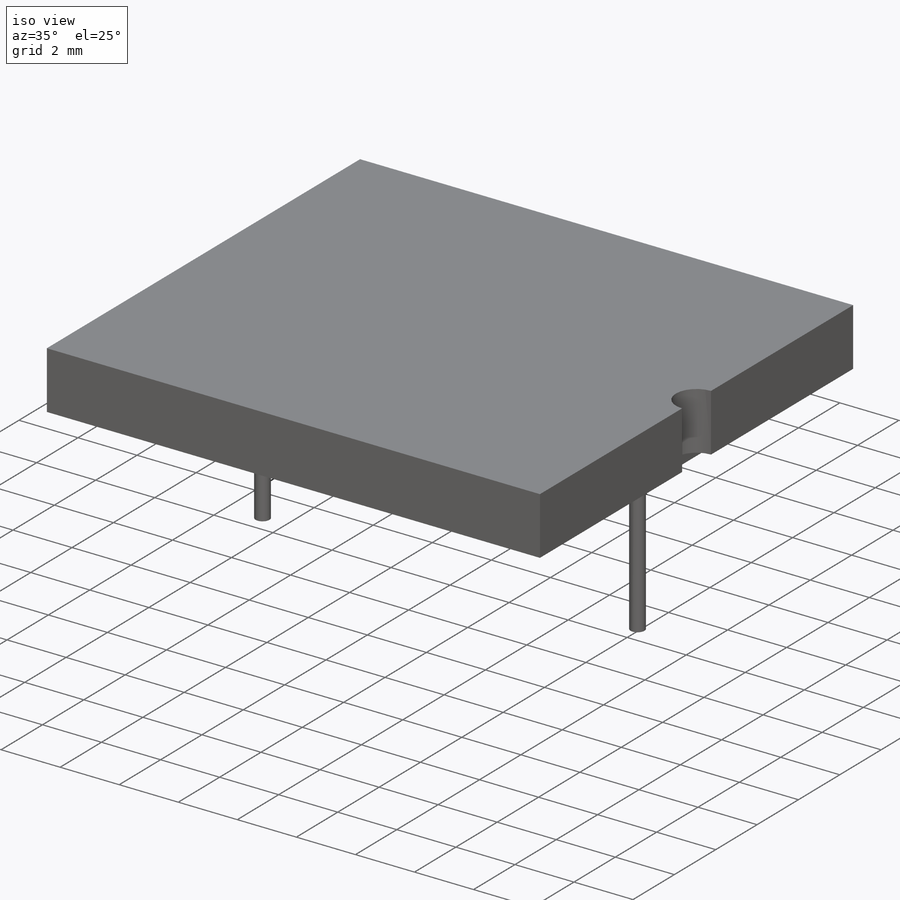
[diagram: iso view]
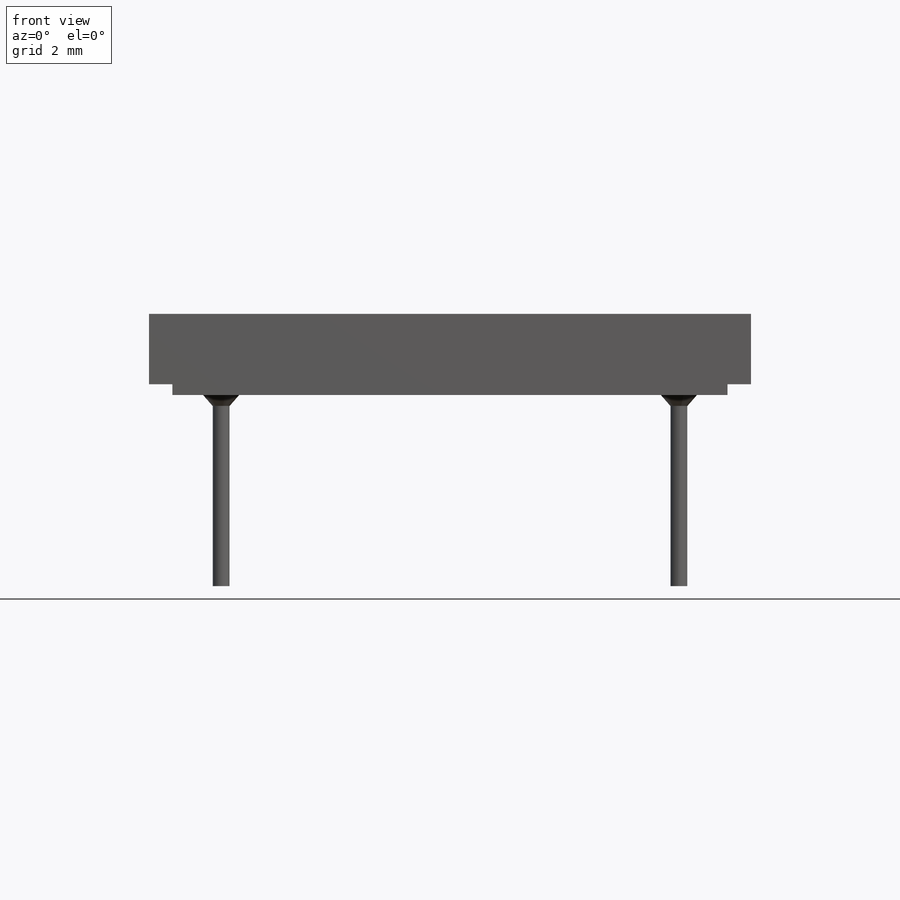
[diagram: front view]
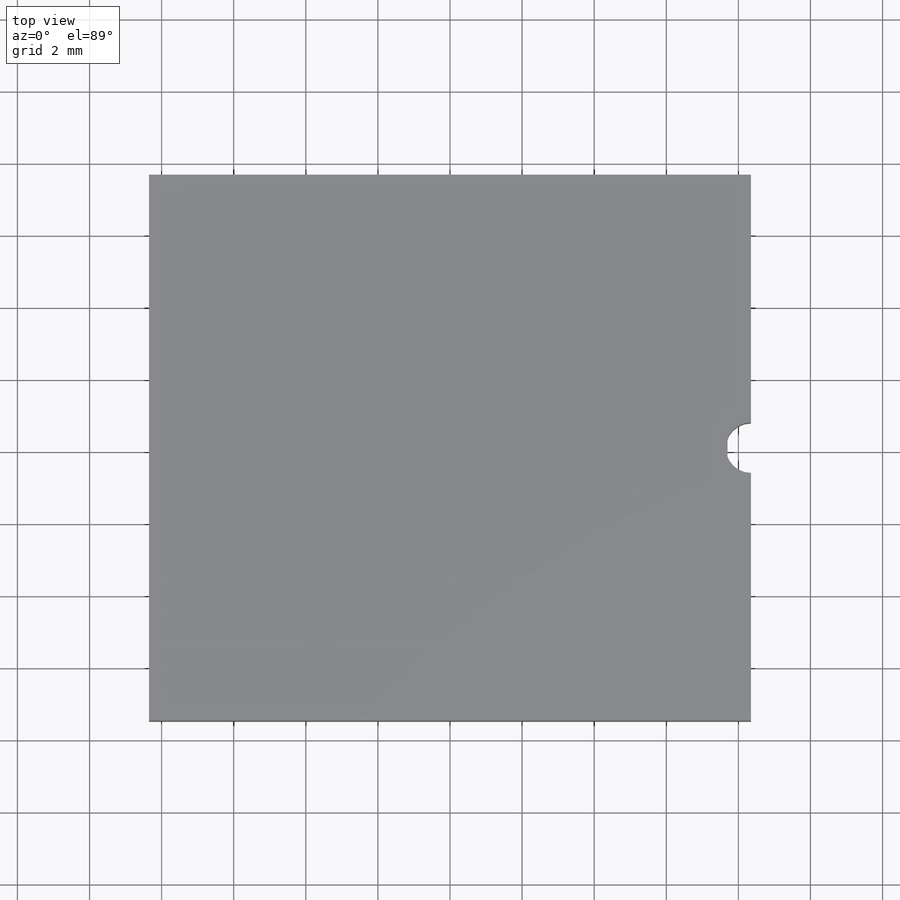
[diagram: top view]
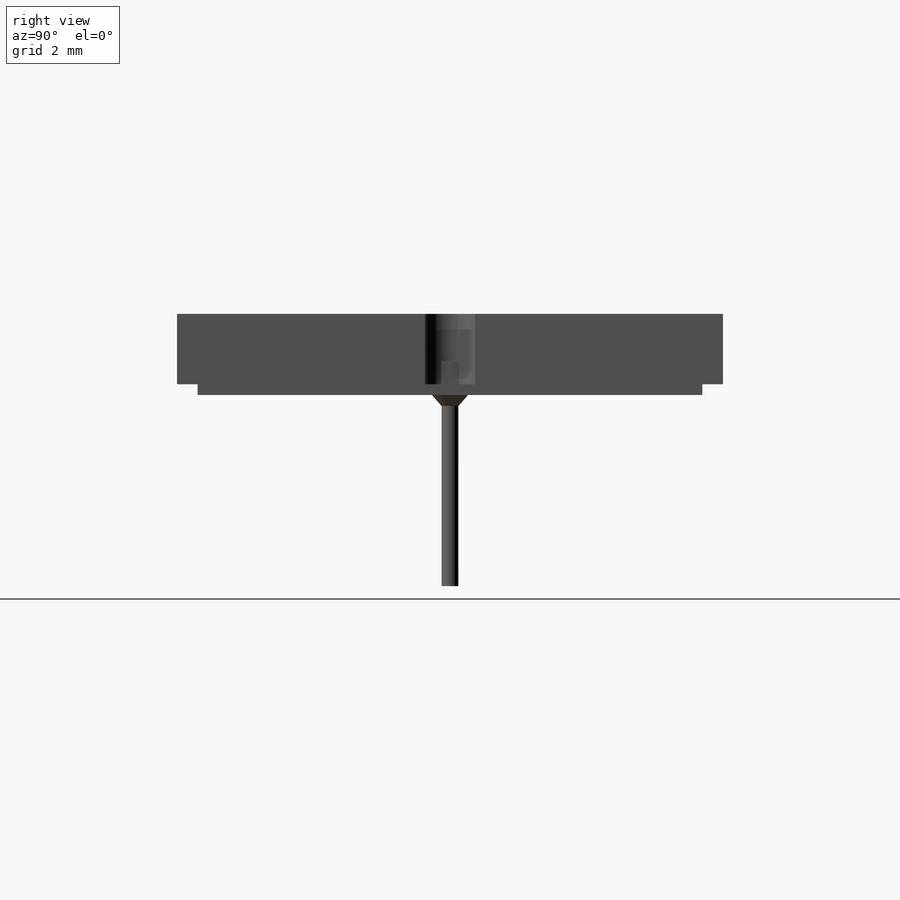
[diagram: right view]
SOLIDWORKS PART (.sldprt)
format: sldprt  version: not decoded by parser v0  size: 226,816 bytes
history: native  units: mm
features: sketch x5, extrude x5, material x1 (+13 scaffold rows collapsed)
feature tree (24):
  scaffold x13  (default folders/planes/origin — collapsed)
  material  "Material <not specified>"
  sketch  "Sketch1"  dims[D3=0.7mm D1=16.7mm D2=15.15mm D4=7.575mm]
  extrude  "Boss-Extrude1"  Depth=1.95mm
  sketch  "Sketch3"  dims[c1.D1=10.0mm c1.D2=10.0mm c2.D1=10.0mm c2.D2=10.0mm]
  extrude  "Boss-Extrude6"  Depth=1.05mm
  sketch  "Sketch12"  dims[D1=15.4mm D2=14.0mm]
  extrude  "Boss-Extrude11"  Depth=0.3mm
  sketch  "Sketch13"  dims[c1.D1=1.0mm c1.D2=1.0mm c1.D3=1.0mm c2.D2=~4.658393mm c2.D3=6.35mm c3.D2=7.575mm]
  extrude  "Boss-Extrude12"  Depth=0.3mm
  sketch  "Sketch14"  dims[D1=~0.465771mm]
  extrude  "Boss-Extrude15"  Depth=5mm
decode coverage: 10 of 10 modeling features carry decoded parameters
note: ~ marks probable driven/reference dimensions
note: suppression state not decoded; provenance and decode notes live in map.json
